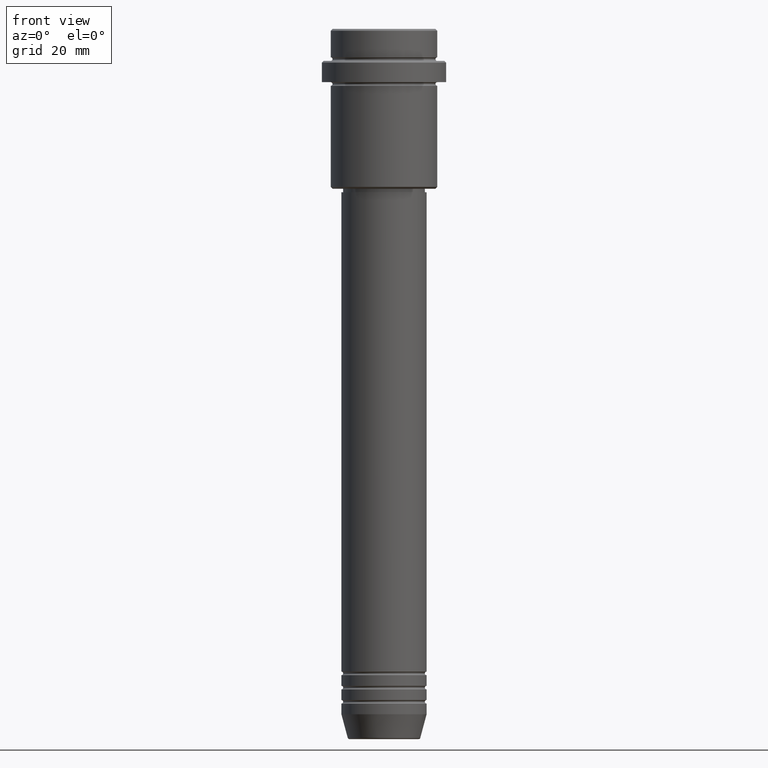
[diagram: clean part render]
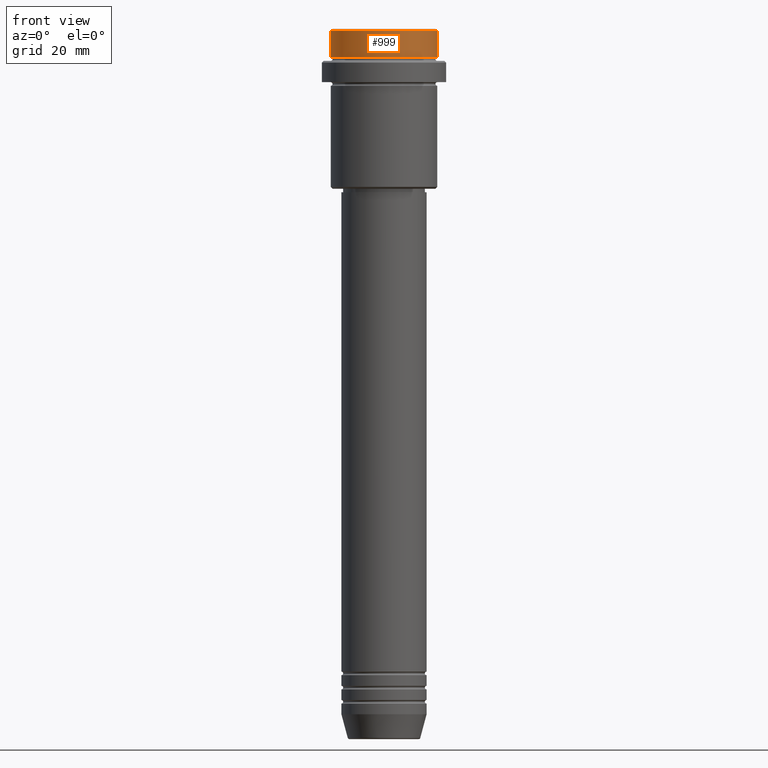
[diagram: same view with one face highlighted and labeled with its STEP entity id]
A machine part, front view. The second image highlights one B-rep face of the part: STEP entity #999.
In plain terms, the highlighted cylindrical surface (partial cylindrical patch) has radius 15 mm, axis along (-0, -0, 1).
Its self-contained STEP definition (entity closure, byte-faithful):
#110 = CARTESIAN_POINT ( 'NONE',  ( -15.00000000000000000, 1.836970198721029589E-15, -7.999999999999998224 ) ) ;
#202 = FACE_OUTER_BOUND ( 'NONE', #1325, .T. ) ;
#274 = VERTEX_POINT ( 'NONE', #1376 ) ;
#323 = AXIS2_PLACEMENT_3D ( 'NONE', #1206, #1302, #418 ) ;
#352 = ORIENTED_EDGE ( 'NONE', *, *, #686, .T. ) ;
#368 = CIRCLE ( 'NONE', #1285, 15.00000000000000000 ) ;
#380 = EDGE_CURVE ( 'NONE', #1265, #274, #897, .T. ) ;
#382 = EDGE_CURVE ( 'NONE', #1265, #565, #877, .T. ) ;
#412 = VECTOR ( 'NONE', #1388, 1000.000000000000000 ) ;
#418 = DIRECTION ( 'NONE',  ( 1.000000000000000000, 0.000000000000000000, 0.000000000000000000 ) ) ;
#427 = DIRECTION ( 'NONE',  ( -0.000000000000000000, -0.000000000000000000, 1.000000000000000000 ) ) ;
#482 = CARTESIAN_POINT ( 'NONE',  ( 0.000000000000000000, 0.000000000000000000, -0.5000000000000108802 ) ) ;
#488 = CARTESIAN_POINT ( 'NONE',  ( 15.00000000000000000, 0.000000000000000000, -0.5000000000000108802 ) ) ;
#513 = DIRECTION ( 'NONE',  ( 0.000000000000000000, 0.000000000000000000, -1.000000000000000000 ) ) ;
#546 = CARTESIAN_POINT ( 'NONE',  ( -15.00000000000000000, 1.836970198721029589E-15, 0.000000000000000000 ) ) ;
#562 = ORIENTED_EDGE ( 'NONE', *, *, #837, .T. ) ;
#565 = VERTEX_POINT ( 'NONE', #1019 ) ;
#584 = DIRECTION ( 'NONE',  ( -0.000000000000000000, -0.000000000000000000, 1.000000000000000000 ) ) ;
#655 = VERTEX_POINT ( 'NONE', #488 ) ;
#686 = EDGE_CURVE ( 'NONE', #655, #565, #368, .T. ) ;
#719 = DIRECTION ( 'NONE',  ( 1.000000000000000000, 0.000000000000000000, 0.000000000000000000 ) ) ;
#837 = EDGE_CURVE ( 'NONE', #274, #655, #1230, .T. ) ;
#865 = ORIENTED_EDGE ( 'NONE', *, *, #380, .T. ) ;
#877 = LINE ( 'NONE', #546, #412 ) ;
#897 = CIRCLE ( 'NONE', #323, 15.00000000000000000 ) ;
#937 = AXIS2_PLACEMENT_3D ( 'NONE', #1182, #427, #1204 ) ;
#999 = ADVANCED_FACE ( 'NONE', ( #202 ), #1402, .T. ) ;
#1019 = CARTESIAN_POINT ( 'NONE',  ( -15.00000000000000000, 1.836970198721029589E-15, -0.5000000000000108802 ) ) ;
#1163 = VECTOR ( 'NONE', #584, 1000.000000000000000 ) ;
#1182 = CARTESIAN_POINT ( 'NONE',  ( 0.000000000000000000, 0.000000000000000000, 0.000000000000000000 ) ) ;
#1204 = DIRECTION ( 'NONE',  ( 1.000000000000000000, 0.000000000000000000, 0.000000000000000000 ) ) ;
#1206 = CARTESIAN_POINT ( 'NONE',  ( 0.000000000000000000, 0.000000000000000000, -7.999999999999998224 ) ) ;
#1222 = CARTESIAN_POINT ( 'NONE',  ( 15.00000000000000000, 0.000000000000000000, 0.000000000000000000 ) ) ;
#1230 = LINE ( 'NONE', #1222, #1163 ) ;
#1237 = ORIENTED_EDGE ( 'NONE', *, *, #382, .F. ) ;
#1265 = VERTEX_POINT ( 'NONE', #110 ) ;
#1285 = AXIS2_PLACEMENT_3D ( 'NONE', #482, #513, #719 ) ;
#1302 = DIRECTION ( 'NONE',  ( -0.000000000000000000, -0.000000000000000000, 1.000000000000000000 ) ) ;
#1325 = EDGE_LOOP ( 'NONE', ( #1237, #865, #562, #352 ) ) ;
#1376 = CARTESIAN_POINT ( 'NONE',  ( 15.00000000000000000, 0.000000000000000000, -7.999999999999998224 ) ) ;
#1388 = DIRECTION ( 'NONE',  ( -0.000000000000000000, -0.000000000000000000, 1.000000000000000000 ) ) ;
#1402 = CYLINDRICAL_SURFACE ( 'NONE', #937, 15.00000000000000000 ) ;